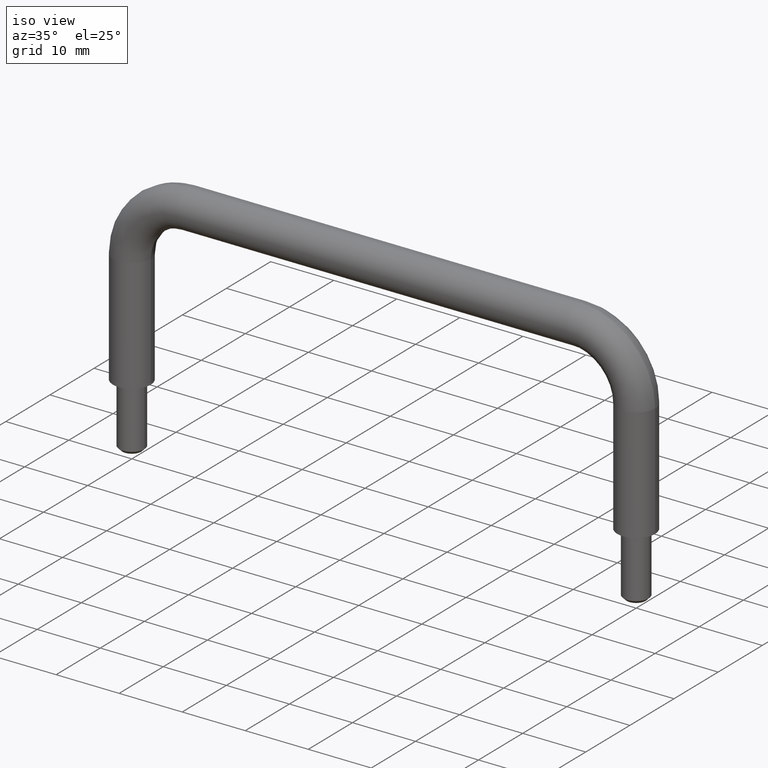
[diagram: clean part render]
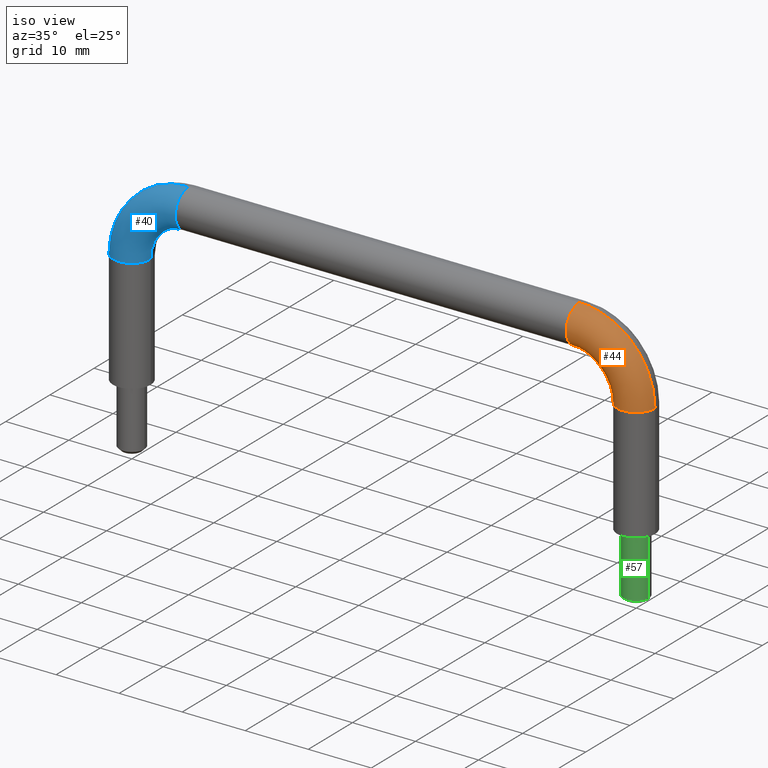
[diagram: same view with three faces highlighted in distinct colors, each labeled with its STEP entity id]
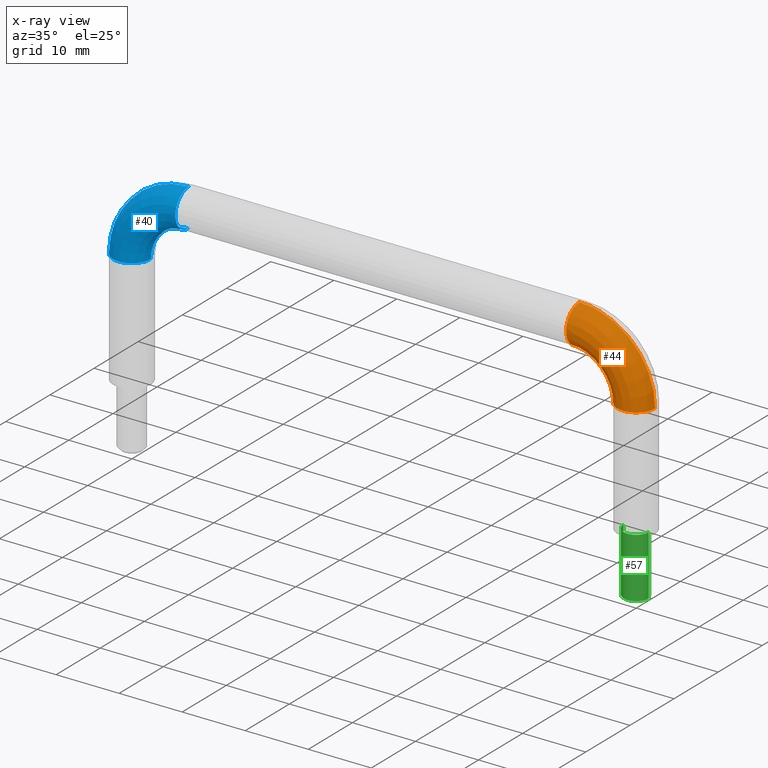
[diagram: x-ray of the same camera — body ghosted, the three highlighted faces saturated]
A machine part, iso view with three faces highlighted in distinct colors.
The next image is the same camera in x-ray (body ghosted, the three faces saturated) — at least one of them is partly hidden behind the body in this view.
Their STEP definitions:

[orange] entity #44 — the highlighted face is a freeform B-spline surface patch.
#44=ADVANCED_FACE('',(#104),#103,.T.);
#103=( BOUNDED_SURFACE() B_SPLINE_SURFACE( 3,3,((#395,#396,#397,#398,#399,#400,#401),(#402,#403,#404,#405,#406,#407,#408),(#409,#410,#411,#412,#413,#414,#415),(#416,#417,#418,#419,#420,#421,#422),(#423,#424,#425,#426,#427,#428,#429),(#430,#431,#432,#433,#434,#435,#436),(#437,#438,#439,#440,#441,#442,#443)), .UNSPECIFIED.,.F.,.F.,.F.) B_SPLINE_SURFACE_WITH_KNOTS((4,1,1,1,4),(4,1,1,1,4),(0.00000000000E+00,2.50000000000E-01,5.00000000000E-01,7.50000000000E-01,1.00000000000E+00),(0.00000000000E+00,2.49559115838E-01,5.00000000000E-01,7.50440884162E-01,1.00000000000E+00), .UNSPECIFIED. ) GEOMETRIC_REPRESENTATION_ITEM() RATIONAL_B_SPLINE_SURFACE(((1.00000000000E+00,1.00000000000E+00,1.00000000000E+00,1.00000000000E+00,1.00000000000E+00,1.00000000000E+00,1.00000000000E+00),(1.00000000000E+00,1.00000000000E+00,1.00000000000E+00,1.00000000000E+00,1.00000000000E+00,1.00000000000E+00,1.00000000000E+00),(1.00000000000E+00,1.00000000000E+00,1.00000000000E+00,1.00000000000E+00,1.00000000000E+00,1.00000000000E+00,1.00000000000E+00),(1.00000000000E+00,1.00000000000E+00,1.00000000000E+00,1.00000000000E+00,1.00000000000E+00,1.00000000000E+00,1.00000000000E+00),(1.00000000000E+00,1.00000000000E+00,1.00000000000E+00,1.00000000000E+00,1.00000000000E+00,1.00000000000E+00,1.00000000000E+00),(1.00000000000E+00,1.00000000000E+00,1.00000000000E+00,1.00000000000E+00,1.00000000000E+00,1.00000000000E+00,1.00000000000E+00),(1.00000000000E+00,1.00000000000E+00,1.00000000000E+00,1.00000000000E+00,1.00000000000E+00,1.00000000000E+00,1.00000000000E+00))) REPRESENTATION_ITEM('') SURFACE() );
#104=FACE_OUTER_BOUND('',#444,.T.);
#395=CARTESIAN_POINT('',(3.69999999999E+01,-3.67381906147E-16,-6.00000000000E+00));
#396=CARTESIAN_POINT('',(3.69999999999E+01,-3.67381906147E-16,-5.21598684610E+00));
#397=CARTESIAN_POINT('',(3.66881902111E+01,-3.67381906147E-16,-3.64564053599E+00));
#398=CARTESIAN_POINT('',(3.53535188052E+01,-3.67381906147E-16,-1.64648119474E+00));
#399=CARTESIAN_POINT('',(3.33543594639E+01,-3.67381906147E-16,-3.11809788756E-01));
#400=CARTESIAN_POINT('',(3.17840131538E+01,-3.67381906147E-16,3.55271367880E-15));
#401=CARTESIAN_POINT('',(3.09999999999E+01,-3.67381906147E-16,3.55271367880E-15));
#402=CARTESIAN_POINT('',(3.69960863756E+01,-7.84902571646E-01,-6.00000000000E+00));
#403=CARTESIAN_POINT('',(3.69960863756E+01,-7.84902571646E-01,-5.20327873106E+00));
#404=CARTESIAN_POINT('',(3.66840071326E+01,-7.84902571647E-01,-3.65333648329E+00));
#405=CARTESIAN_POINT('',(3.53523403333E+01,-7.84902571647E-01,-1.64765966658E+00));
#406=CARTESIAN_POINT('',(3.33466635166E+01,-7.84902571647E-01,-3.15992867272E-01));
#407=CARTESIAN_POINT('',(3.17967212688E+01,-7.84902571646E-01,-3.91362428601E-03));
#408=CARTESIAN_POINT('',(3.09999999999E+01,-7.84902571646E-01,-3.91362428601E-03));
#409=CARTESIAN_POINT('',(3.76486908706E+01,-2.35139231717E+00,-6.00000000000E+00));
#410=CARTESIAN_POINT('',(3.76486908706E+01,-2.35139231717E+00,-5.10117077798E+00));
#411=CARTESIAN_POINT('',(3.73020948003E+01,-2.35139231717E+00,-3.40510297808E+00));
#412=CARTESIAN_POINT('',(3.58279765903E+01,-2.35139231717E+00,-1.17202340958E+00));
#413=CARTESIAN_POINT('',(3.35948970218E+01,-2.35139231717E+00,3.02094800383E-01));
#414=CARTESIAN_POINT('',(3.18988292219E+01,-2.35139231717E+00,6.48690870700E-01));
#415=CARTESIAN_POINT('',(3.09999999999E+01,-2.35139231717E+00,6.48690870700E-01));
#416=CARTESIAN_POINT('',(3.99999999999E+01,-3.32731061924E+00,-6.00000000000E+00));
#417=CARTESIAN_POINT('',(3.99999999999E+01,-3.32731061924E+00,-4.82398026915E+00));
#418=CARTESIAN_POINT('',(3.95322853168E+01,-3.32731061924E+00,-2.46846080399E+00));
#419=CARTESIAN_POINT('',(3.75302782078E+01,-3.32731061924E+00,5.30278207890E-01));
#420=CARTESIAN_POINT('',(3.45315391959E+01,-3.32731061924E+00,2.53228531687E+00));
#421=CARTESIAN_POINT('',(3.21760197307E+01,-3.32731061924E+00,3.00000000000E+00));
#422=CARTESIAN_POINT('',(3.09999999999E+01,-3.32731061924E+00,3.00000000000E+00));
#423=CARTESIAN_POINT('',(4.23513091292E+01,-2.35139231717E+00,-6.00000000000E+00));
#424=CARTESIAN_POINT('',(4.23513091292E+01,-2.35139231717E+00,-4.54678976032E+00));
#425=CARTESIAN_POINT('',(4.17624758332E+01,-2.35139231717E+00,-1.53181862990E+00));
#426=CARTESIAN_POINT('',(3.92325798253E+01,-2.35139231717E+00,2.23257982536E+00));
#427=CARTESIAN_POINT('',(3.54681813700E+01,-2.35139231717E+00,4.76247583335E+00));
#428=CARTESIAN_POINT('',(3.24532102396E+01,-2.35139231717E+00,5.35130912930E+00));
#429=CARTESIAN_POINT('',(3.09999999999E+01,-2.35139231717E+00,5.35130912930E+00));
#430=CARTESIAN_POINT('',(4.30039136242E+01,-7.84902571646E-01,-6.00000000000E+00));
#431=CARTESIAN_POINT('',(4.30039136242E+01,-7.84902571646E-01,-4.44468180724E+00));
#432=CARTESIAN_POINT('',(4.23805635009E+01,-7.84902571646E-01,-1.28358512468E+00));
#433=CARTESIAN_POINT('',(3.97082160823E+01,-7.84902571646E-01,2.70821608236E+00));
#434=CARTESIAN_POINT('',(3.57164148752E+01,-7.84902571646E-01,5.38056350100E+00));
#435=CARTESIAN_POINT('',(3.25553181927E+01,-7.84902571646E-01,6.00391362429E+00));
#436=CARTESIAN_POINT('',(3.09999999999E+01,-7.84902571646E-01,6.00391362429E+00));
#437=CARTESIAN_POINT('',(4.29999999999E+01,0.00000000000E+00,-6.00000000000E+00));
#438=CARTESIAN_POINT('',(4.29999999999E+01,0.00000000000E+00,-4.43197369220E+00));
#439=CARTESIAN_POINT('',(4.23763804224E+01,0.00000000000E+00,-1.29128107198E+00));
#440=CARTESIAN_POINT('',(3.97070376104E+01,0.00000000000E+00,2.70703761052E+00));
#441=CARTESIAN_POINT('',(3.57087189279E+01,0.00000000000E+00,5.37638042249E+00));
#442=CARTESIAN_POINT('',(3.25680263077E+01,0.00000000000E+00,6.00000000000E+00));
#443=CARTESIAN_POINT('',(3.09999999999E+01,0.00000000000E+00,6.00000000000E+00));
#444=EDGE_LOOP('',(#614,#615,#616,#617));
#614=ORIENTED_EDGE('',*,*,#698,.T.);
#615=ORIENTED_EDGE('',*,*,#689,.F.);
#616=ORIENTED_EDGE('',*,*,#699,.T.);
#617=ORIENTED_EDGE('',*,*,#691,.T.);
#689=EDGE_CURVE('',#755,#762,#763,.T.);
#691=EDGE_CURVE('',#754,#769,#776,.T.);
#698=EDGE_CURVE('',#769,#762,#824,.T.);
#699=EDGE_CURVE('',#755,#754,#830,.T.);
#754=VERTEX_POINT('',#1023);
#755=VERTEX_POINT('',#1024);
#762=VERTEX_POINT('',#1029);
#763=CIRCLE('',#1033,6.00000000000E+00);
#769=VERTEX_POINT('',#1034);
#776=(BOUNDED_CURVE() B_SPLINE_CURVE(3,(#1039,#1040,#1041,#1042,#1043),.UNSPECIFIED.,.F.,.F.) B_SPLINE_CURVE_WITH_KNOTS((4,1,4),(1.57079632680E+00,2.35619449020E+00,3.14159265360E+00),.UNSPECIFIED.) CURVE() GEOMETRIC_REPRESENTATION_ITEM() RATIONAL_B_SPLINE_CURVE((1.00000000000E+00,1.00000000000E+00,1.00000000000E+00,1.00000000000E+00,1.00000000000E+00)) REPRESENTATION_ITEM('') );
#824=CIRCLE('',#1077,3.00000000000E+00);
#830=CIRCLE('',#1081,3.00000000000E+00);
#1023=CARTESIAN_POINT('',(4.29999999999E+01,0.00000000000E+00,-6.00000000000E+00));
#1024=CARTESIAN_POINT('',(3.69999999999E+01,-1.48029736617E-16,-6.00000000000E+00));
#1029=CARTESIAN_POINT('',(3.09999999999E+01,0.00000000000E+00,0.00000000000E+00));
#1030=CARTESIAN_POINT('',(3.09999999999E+01,-3.67381906147E-16,-6.00000000000E+00));
#1031=DIRECTION('',(1.64346021921E-32,-1.00000000000E+00,5.40434465142E-48));
#1032=DIRECTION('',(-1.00000000000E+00,-1.64346021921E-32,2.66157466437E-13));
#1033=AXIS2_PLACEMENT_3D('',#1030,#1031,#1032);
#1034=CARTESIAN_POINT('',(3.09999999999E+01,-1.48029736617E-16,6.00000000000E+00));
#1039=CARTESIAN_POINT('',(4.29999999999E+01,0.00000000000E+00,-5.99999999997E+00));
#1040=CARTESIAN_POINT('',(4.30250591043E+01,0.00000000000E+00,-2.89325030281E+00));
#1041=CARTESIAN_POINT('',(4.04046583476E+01,0.00000000000E+00,3.40465834776E+00));
#1042=CARTESIAN_POINT('',(3.41067496970E+01,0.00000000000E+00,6.02505910444E+00));
#1043=CARTESIAN_POINT('',(3.09999999998E+01,0.00000000000E+00,6.00000000000E+00));
#1074=CARTESIAN_POINT('',(3.09999999999E+01,0.00000000000E+00,3.00000000000E+00));
#1075=DIRECTION('',(1.00000000000E+00,0.00000000000E+00,0.00000000000E+00));
#1076=DIRECTION('',(-0.00000000000E+00,4.93432455390E-17,-1.00000000000E+00));
#1077=AXIS2_PLACEMENT_3D('',#1074,#1075,#1076);
#1078=CARTESIAN_POINT('',(3.99999999999E+01,0.00000000000E+00,-6.00000000000E+00));
#1079=DIRECTION('',(0.00000000000E+00,0.00000000000E+00,1.00000000000E+00));
#1080=DIRECTION('',(1.00000000000E+00,4.93432455390E-17,-0.00000000000E+00));
#1081=AXIS2_PLACEMENT_3D('',#1078,#1079,#1080);

[blue] entity #40 — the highlighted face is a freeform B-spline surface patch.
#40=ADVANCED_FACE('',(#63),#62,.T.);
#62=( BOUNDED_SURFACE() B_SPLINE_SURFACE( 3,3,((#284,#285,#286,#287,#288,#289,#290),(#291,#292,#293,#294,#295,#296,#297),(#298,#299,#300,#301,#302,#303,#304),(#305,#306,#307,#308,#309,#310,#311),(#312,#313,#314,#315,#316,#317,#318),(#319,#320,#321,#322,#323,#324,#325),(#326,#327,#328,#329,#330,#331,#332)), .UNSPECIFIED.,.F.,.F.,.F.) B_SPLINE_SURFACE_WITH_KNOTS((4,1,1,1,4),(4,1,1,1,4),(0.00000000000E+00,2.50000000000E-01,5.00000000000E-01,7.50000000000E-01,1.00000000000E+00),(0.00000000000E+00,2.49559115838E-01,5.00000000000E-01,7.50440884162E-01,1.00000000000E+00), .UNSPECIFIED. ) GEOMETRIC_REPRESENTATION_ITEM() RATIONAL_B_SPLINE_SURFACE(((1.00000000000E+00,1.00000000000E+00,1.00000000000E+00,1.00000000000E+00,1.00000000000E+00,1.00000000000E+00,1.00000000000E+00),(1.00000000000E+00,1.00000000000E+00,1.00000000000E+00,1.00000000000E+00,1.00000000000E+00,1.00000000000E+00,1.00000000000E+00),(1.00000000000E+00,1.00000000000E+00,1.00000000000E+00,1.00000000000E+00,1.00000000000E+00,1.00000000000E+00,1.00000000000E+00),(1.00000000000E+00,1.00000000000E+00,1.00000000000E+00,1.00000000000E+00,1.00000000000E+00,1.00000000000E+00,1.00000000000E+00),(1.00000000000E+00,1.00000000000E+00,1.00000000000E+00,1.00000000000E+00,1.00000000000E+00,1.00000000000E+00,1.00000000000E+00),(1.00000000000E+00,1.00000000000E+00,1.00000000000E+00,1.00000000000E+00,1.00000000000E+00,1.00000000000E+00,1.00000000000E+00),(1.00000000000E+00,1.00000000000E+00,1.00000000000E+00,1.00000000000E+00,1.00000000000E+00,1.00000000000E+00,1.00000000000E+00))) REPRESENTATION_ITEM('') SURFACE() );
#63=FACE_OUTER_BOUND('',#333,.T.);
#284=CARTESIAN_POINT('',(-3.09999999999E+01,-3.67381906147E-16,3.55271367880E-15));
#285=CARTESIAN_POINT('',(-3.17840131538E+01,-3.67381906147E-16,3.55271367880E-15));
#286=CARTESIAN_POINT('',(-3.33543594639E+01,-3.67381906147E-16,-3.11809788756E-01));
#287=CARTESIAN_POINT('',(-3.53535188052E+01,-3.67381906147E-16,-1.64648119474E+00));
#288=CARTESIAN_POINT('',(-3.66881902111E+01,-3.67381906147E-16,-3.64564053599E+00));
#289=CARTESIAN_POINT('',(-3.69999999999E+01,-3.67381906147E-16,-5.21598684610E+00));
#290=CARTESIAN_POINT('',(-3.69999999999E+01,-3.67381906147E-16,-6.00000000000E+00));
#291=CARTESIAN_POINT('',(-3.09999999999E+01,-7.84902571646E-01,-3.91362428601E-03));
#292=CARTESIAN_POINT('',(-3.17967212688E+01,-7.84902571646E-01,-3.91362428601E-03));
#293=CARTESIAN_POINT('',(-3.33466635166E+01,-7.84902571647E-01,-3.15992867272E-01));
#294=CARTESIAN_POINT('',(-3.53523403333E+01,-7.84902571647E-01,-1.64765966658E+00));
#295=CARTESIAN_POINT('',(-3.66840071326E+01,-7.84902571647E-01,-3.65333648329E+00));
#296=CARTESIAN_POINT('',(-3.69960863756E+01,-7.84902571646E-01,-5.20327873106E+00));
#297=CARTESIAN_POINT('',(-3.69960863756E+01,-7.84902571646E-01,-6.00000000000E+00));
#298=CARTESIAN_POINT('',(-3.09999999999E+01,-2.35139231717E+00,6.48690870700E-01));
#299=CARTESIAN_POINT('',(-3.18988292219E+01,-2.35139231717E+00,6.48690870700E-01));
#300=CARTESIAN_POINT('',(-3.35948970218E+01,-2.35139231717E+00,3.02094800383E-01));
#301=CARTESIAN_POINT('',(-3.58279765903E+01,-2.35139231717E+00,-1.17202340958E+00));
#302=CARTESIAN_POINT('',(-3.73020948003E+01,-2.35139231717E+00,-3.40510297808E+00));
#303=CARTESIAN_POINT('',(-3.76486908706E+01,-2.35139231717E+00,-5.10117077798E+00));
#304=CARTESIAN_POINT('',(-3.76486908706E+01,-2.35139231717E+00,-6.00000000000E+00));
#305=CARTESIAN_POINT('',(-3.09999999999E+01,-3.32731061924E+00,3.00000000000E+00));
#306=CARTESIAN_POINT('',(-3.21760197307E+01,-3.32731061924E+00,3.00000000000E+00));
#307=CARTESIAN_POINT('',(-3.45315391959E+01,-3.32731061924E+00,2.53228531687E+00));
#308=CARTESIAN_POINT('',(-3.75302782078E+01,-3.32731061924E+00,5.30278207890E-01));
#309=CARTESIAN_POINT('',(-3.95322853168E+01,-3.32731061924E+00,-2.46846080399E+00));
#310=CARTESIAN_POINT('',(-3.99999999999E+01,-3.32731061924E+00,-4.82398026915E+00));
#311=CARTESIAN_POINT('',(-3.99999999999E+01,-3.32731061924E+00,-6.00000000000E+00));
#312=CARTESIAN_POINT('',(-3.09999999999E+01,-2.35139231717E+00,5.35130912930E+00));
#313=CARTESIAN_POINT('',(-3.24532102396E+01,-2.35139231717E+00,5.35130912930E+00));
#314=CARTESIAN_POINT('',(-3.54681813700E+01,-2.35139231717E+00,4.76247583335E+00));
#315=CARTESIAN_POINT('',(-3.92325798253E+01,-2.35139231717E+00,2.23257982536E+00));
#316=CARTESIAN_POINT('',(-4.17624758332E+01,-2.35139231717E+00,-1.53181862990E+00));
#317=CARTESIAN_POINT('',(-4.23513091292E+01,-2.35139231717E+00,-4.54678976032E+00));
#318=CARTESIAN_POINT('',(-4.23513091292E+01,-2.35139231717E+00,-6.00000000000E+00));
#319=CARTESIAN_POINT('',(-3.09999999999E+01,-7.84902571646E-01,6.00391362429E+00));
#320=CARTESIAN_POINT('',(-3.25553181927E+01,-7.84902571646E-01,6.00391362429E+00));
#321=CARTESIAN_POINT('',(-3.57164148752E+01,-7.84902571646E-01,5.38056350100E+00));
#322=CARTESIAN_POINT('',(-3.97082160823E+01,-7.84902571646E-01,2.70821608236E+00));
#323=CARTESIAN_POINT('',(-4.23805635009E+01,-7.84902571646E-01,-1.28358512468E+00));
#324=CARTESIAN_POINT('',(-4.30039136242E+01,-7.84902571646E-01,-4.44468180724E+00));
#325=CARTESIAN_POINT('',(-4.30039136242E+01,-7.84902571646E-01,-6.00000000000E+00));
#326=CARTESIAN_POINT('',(-3.09999999999E+01,0.00000000000E+00,6.00000000000E+00));
#327=CARTESIAN_POINT('',(-3.25680263077E+01,0.00000000000E+00,6.00000000000E+00));
#328=CARTESIAN_POINT('',(-3.57087189279E+01,0.00000000000E+00,5.37638042249E+00));
#329=CARTESIAN_POINT('',(-3.97070376104E+01,0.00000000000E+00,2.70703761052E+00));
#330=CARTESIAN_POINT('',(-4.23763804224E+01,0.00000000000E+00,-1.29128107198E+00));
#331=CARTESIAN_POINT('',(-4.29999999999E+01,0.00000000000E+00,-4.43197369220E+00));
#332=CARTESIAN_POINT('',(-4.29999999999E+01,0.00000000000E+00,-6.00000000000E+00));
#333=EDGE_LOOP('',(#600,#601,#602,#603));
#600=ORIENTED_EDGE('',*,*,#684,.F.);
#601=ORIENTED_EDGE('',*,*,#685,.F.);
#602=ORIENTED_EDGE('',*,*,#686,.F.);
#603=ORIENTED_EDGE('',*,*,#687,.T.);
#684=EDGE_CURVE('',#726,#727,#728,.T.);
#685=EDGE_CURVE('',#734,#726,#735,.T.);
#686=EDGE_CURVE('',#741,#734,#742,.T.);
#687=EDGE_CURVE('',#741,#727,#748,.T.);
#726=VERTEX_POINT('',#1002);
#727=VERTEX_POINT('',#1003);
#728=CIRCLE('',#1007,3.00000000000E+00);
#734=VERTEX_POINT('',#1008);
#735=CIRCLE('',#1012,6.00000000000E+00);
#741=VERTEX_POINT('',#1013);
#742=CIRCLE('',#1017,3.00000000000E+00);
#748=(BOUNDED_CURVE() B_SPLINE_CURVE(3,(#1018,#1019,#1020,#1021,#1022),.UNSPECIFIED.,.F.,.F.) B_SPLINE_CURVE_WITH_KNOTS((4,1,4),(3.14159265359E+00,3.92699081698E+00,4.71238898038E+00),.UNSPECIFIED.) CURVE() GEOMETRIC_REPRESENTATION_ITEM() RATIONAL_B_SPLINE_CURVE((1.00000000000E+00,1.00000000000E+00,1.00000000000E+00,1.00000000000E+00,1.00000000000E+00)) REPRESENTATION_ITEM('') );
#1002=CARTESIAN_POINT('',(-3.69999999999E+01,-1.48029736617E-16,-6.00000000000E+00));
#1003=CARTESIAN_POINT('',(-4.29999999999E+01,0.00000000000E+00,-6.00000000000E+00));
#1004=CARTESIAN_POINT('',(-3.99999999999E+01,0.00000000000E+00,-6.00000000000E+00));
#1005=DIRECTION('',(0.00000000000E+00,0.00000000000E+00,-1.00000000000E+00));
#1006=DIRECTION('',(-1.00000000000E+00,4.93432455390E-17,-0.00000000000E+00));
#1007=AXIS2_PLACEMENT_3D('',#1004,#1005,#1006);
#1008=CARTESIAN_POINT('',(-3.09999999999E+01,0.00000000000E+00,0.00000000000E+00));
#1009=CARTESIAN_POINT('',(-3.09999999999E+01,-3.67381906147E-16,-6.00000000000E+00));
#1010=DIRECTION('',(4.56356335465E-33,-1.00000000000E+00,1.64346021921E-32));
#1011=DIRECTION('',(-2.65269288017E-13,-1.64346021921E-32,-1.00000000000E+00));
#1012=AXIS2_PLACEMENT_3D('',#1009,#1010,#1011);
#1013=CARTESIAN_POINT('',(-3.09999999999E+01,-1.48029736617E-16,6.00000000000E+00));
#1014=CARTESIAN_POINT('',(-3.09999999999E+01,0.00000000000E+00,3.00000000000E+00));
#1015=DIRECTION('',(1.00000000000E+00,0.00000000000E+00,0.00000000000E+00));
#1016=DIRECTION('',(-0.00000000000E+00,4.93432455390E-17,-1.00000000000E+00));
#1017=AXIS2_PLACEMENT_3D('',#1014,#1015,#1016);
#1018=CARTESIAN_POINT('',(-3.09999999999E+01,0.00000000000E+00,6.00000000000E+00));
#1019=CARTESIAN_POINT('',(-3.41067496970E+01,0.00000000000E+00,6.02505910442E+00));
#1020=CARTESIAN_POINT('',(-4.04046583476E+01,0.00000000000E+00,3.40465834772E+00));
#1021=CARTESIAN_POINT('',(-4.30250591043E+01,0.00000000000E+00,-2.89325030282E+00));
#1022=CARTESIAN_POINT('',(-4.29999999999E+01,0.00000000000E+00,-5.99999999997E+00));

[green] entity #57 — the highlighted cylindrical surface (edge-blend (fillet) strip) has radius 2 mm, axis along (-0, 0, -1).
#57=ADVANCED_FACE('',(#235),#234,.T.);
#234=CYLINDRICAL_SURFACE('',#578,2.00000000000E+00);
#235=FACE_OUTER_BOUND('',#579,.T.);
#575=CARTESIAN_POINT('',(3.99999999999E+01,0.00000000000E+00,-2.87500000000E+01));
#576=DIRECTION('',(-0.00000000000E+00,0.00000000000E+00,-1.00000000000E+00));
#577=DIRECTION('',(-1.00000000000E+00,-0.00000000000E+00,0.00000000000E+00));
#578=AXIS2_PLACEMENT_3D('',#575,#576,#577);
#579=EDGE_LOOP('',(#664,#665,#666,#667));
#664=ORIENTED_EDGE('',*,*,#696,.T.);
#665=ORIENTED_EDGE('',*,*,#720,.T.);
#666=ORIENTED_EDGE('',*,*,#719,.F.);
#667=ORIENTED_EDGE('',*,*,#721,.F.);
#696=EDGE_CURVE('',#810,#811,#812,.T.);
#719=EDGE_CURVE('',#941,#940,#960,.T.);
#720=EDGE_CURVE('',#811,#940,#966,.T.);
#721=EDGE_CURVE('',#810,#941,#972,.T.);
#810=VERTEX_POINT('',#1064);
#811=VERTEX_POINT('',#1065);
#812=CIRCLE('',#1069,2.00000000000E+00);
#940=VERTEX_POINT('',#1142);
#941=VERTEX_POINT('',#1143);
#960=CIRCLE('',#1155,2.00000000000E+00);
#966=(BOUNDED_CURVE() B_SPLINE_CURVE(1,(#1156,#1157),.UNSPECIFIED.,.F.,.F.) B_SPLINE_CURVE_WITH_KNOTS((2,2),(8.33333343261E-02,9.16666667006E-01),.UNSPECIFIED.) CURVE() GEOMETRIC_REPRESENTATION_ITEM() RATIONAL_B_SPLINE_CURVE((1.00000000000E+00,1.00000000000E+00)) REPRESENTATION_ITEM('') );
#972=(BOUNDED_CURVE() B_SPLINE_CURVE(1,(#1158,#1159),.UNSPECIFIED.,.F.,.F.) B_SPLINE_CURVE_WITH_KNOTS((2,2),(8.33333333333E-02,9.16666666667E-01),.UNSPECIFIED.) CURVE() GEOMETRIC_REPRESENTATION_ITEM() RATIONAL_B_SPLINE_CURVE((7.50000000000E-01,7.50000000000E-01)) REPRESENTATION_ITEM('') );
#1064=CARTESIAN_POINT('',(4.19999999999E+01,7.40148683083E-17,-2.40000000000E+01));
#1065=CARTESIAN_POINT('',(3.79999999999E+01,-4.66965875689E-16,-2.40000000000E+01));
#1066=CARTESIAN_POINT('',(3.99999999999E+01,0.00000000000E+00,-2.40000000000E+01));
#1067=DIRECTION('',(0.00000000000E+00,0.00000000000E+00,-1.00000000000E+00));
#1068=DIRECTION('',(-1.00000000000E+00,-1.11022302463E-16,-0.00000000000E+00));
#1069=AXIS2_PLACEMENT_3D('',#1066,#1067,#1068);
#1142=CARTESIAN_POINT('',(3.79999999999E+01,-4.66965875689E-16,-3.35000000000E+01));
#1143=CARTESIAN_POINT('',(4.19999999999E+01,7.40148683083E-17,-3.35000000000E+01));
#1152=CARTESIAN_POINT('',(3.99999999999E+01,0.00000000000E+00,-3.35000000000E+01));
#1153=DIRECTION('',(0.00000000000E+00,0.00000000000E+00,-1.00000000000E+00));
#1154=DIRECTION('',(-1.00000000000E+00,-1.11022302463E-16,-0.00000000000E+00));
#1155=AXIS2_PLACEMENT_3D('',#1152,#1153,#1154);
#1156=CARTESIAN_POINT('',(3.79999999999E+01,0.00000000000E+00,-2.40000000113E+01));
#1157=CARTESIAN_POINT('',(3.79999999999E+01,0.00000000000E+00,-3.35000000039E+01));
#1158=CARTESIAN_POINT('',(4.19999999999E+01,-7.40148683083E-17,-2.40000000000E+01));
#1159=CARTESIAN_POINT('',(4.19999999999E+01,-7.40148683083E-17,-3.35000000000E+01));